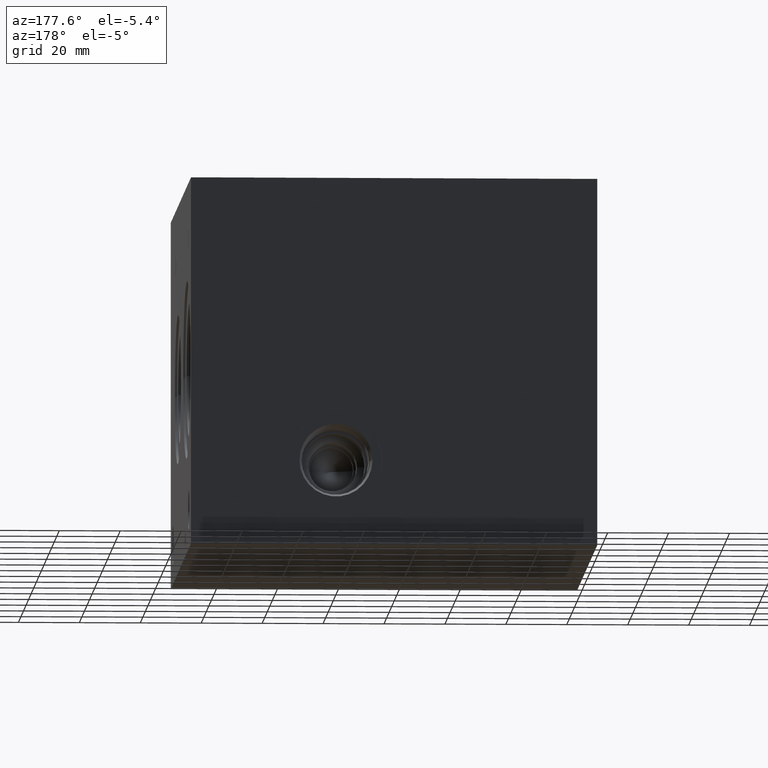
[diagram: clean part render]
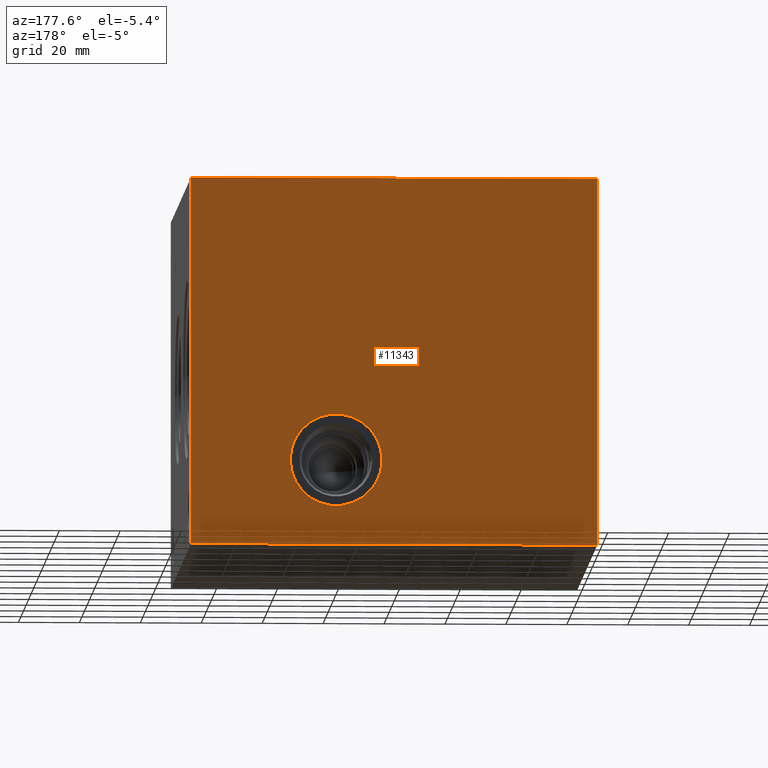
[diagram: same view with one face highlighted and labeled with its STEP entity id]
A machine part, auxiliary view. The second image highlights one B-rep face of the part: STEP entity #11343.
In plain terms, the highlighted planar face has unit normal (0, 1, 0).
Its self-contained STEP definition (entity closure, byte-faithful):
#160=CIRCLE('',#11674,15.08);
#161=CIRCLE('',#11675,15.08);
#477=FACE_BOUND('',#2170,.T.);
#1503=FACE_OUTER_BOUND('',#2169,.T.);
#2169=EDGE_LOOP('',(#9966,#9967,#9968,#9969));
#2170=EDGE_LOOP('',(#9970,#9971));
#3000=LINE('',#18475,#4023);
#3060=LINE('',#18748,#4083);
#3209=LINE('',#19593,#4232);
#3210=LINE('',#19594,#4233);
#4023=VECTOR('',#13416,10.);
#4083=VECTOR('',#13530,10.);
#4232=VECTOR('',#14495,10.);
#4233=VECTOR('',#14496,10.);
#4962=VERTEX_POINT('',#18472);
#4963=VERTEX_POINT('',#18474);
#5020=VERTEX_POINT('',#18744);
#5021=VERTEX_POINT('',#18746);
#5046=VERTEX_POINT('',#18815);
#5047=VERTEX_POINT('',#18816);
#6398=EDGE_CURVE('',#4962,#4963,#3000,.T.);
#6482=EDGE_CURVE('',#5020,#5021,#3060,.T.);
#6515=EDGE_CURVE('',#5046,#5047,#160,.T.);
#6516=EDGE_CURVE('',#5047,#5046,#161,.T.);
#6878=EDGE_CURVE('',#4962,#5020,#3209,.T.);
#6879=EDGE_CURVE('',#4963,#5021,#3210,.T.);
#9966=ORIENTED_EDGE('',*,*,#6878,.T.);
#9967=ORIENTED_EDGE('',*,*,#6482,.T.);
#9968=ORIENTED_EDGE('',*,*,#6879,.F.);
#9969=ORIENTED_EDGE('',*,*,#6398,.F.);
#9970=ORIENTED_EDGE('',*,*,#6515,.T.);
#9971=ORIENTED_EDGE('',*,*,#6516,.T.);
#10336=PLANE('',#12063);
#11343=ADVANCED_FACE('',(#1503,#477),#10336,.T.);
#11674=AXIS2_PLACEMENT_3D('',#18817,#13591,#13592);
#11675=AXIS2_PLACEMENT_3D('',#18818,#13593,#13594);
#12063=AXIS2_PLACEMENT_3D('',#19592,#14493,#14494);
#13416=DIRECTION('',(0.,0.,1.));
#13530=DIRECTION('',(0.,0.,1.));
#13591=DIRECTION('center_axis',(0.,-1.,0.));
#13592=DIRECTION('ref_axis',(1.,0.,0.));
#13593=DIRECTION('center_axis',(0.,-1.,0.));
#13594=DIRECTION('ref_axis',(1.,0.,0.));
#14493=DIRECTION('center_axis',(0.,1.,0.));
#14494=DIRECTION('ref_axis',(-1.,0.,0.));
#14495=DIRECTION('',(-1.,0.,0.));
#14496=DIRECTION('',(-1.,0.,0.));
#18472=CARTESIAN_POINT('',(133.35,158.75,0.));
#18474=CARTESIAN_POINT('',(133.35,158.75,120.65));
#18475=CARTESIAN_POINT('',(133.35,158.75,0.));
#18744=CARTESIAN_POINT('',(0.,158.75,0.));
#18746=CARTESIAN_POINT('',(0.,158.75,120.65));
#18748=CARTESIAN_POINT('',(0.,158.75,0.));
#18815=CARTESIAN_POINT('',(100.805,158.75,27.7876));
#18816=CARTESIAN_POINT('',(70.645,158.75,27.7876));
#18817=CARTESIAN_POINT('Origin',(85.725,158.75,27.7876));
#18818=CARTESIAN_POINT('Origin',(85.725,158.75,27.7876));
#19592=CARTESIAN_POINT('Origin',(133.35,158.75,0.));
#19593=CARTESIAN_POINT('',(133.35,158.75,0.));
#19594=CARTESIAN_POINT('',(133.35,158.75,120.65));